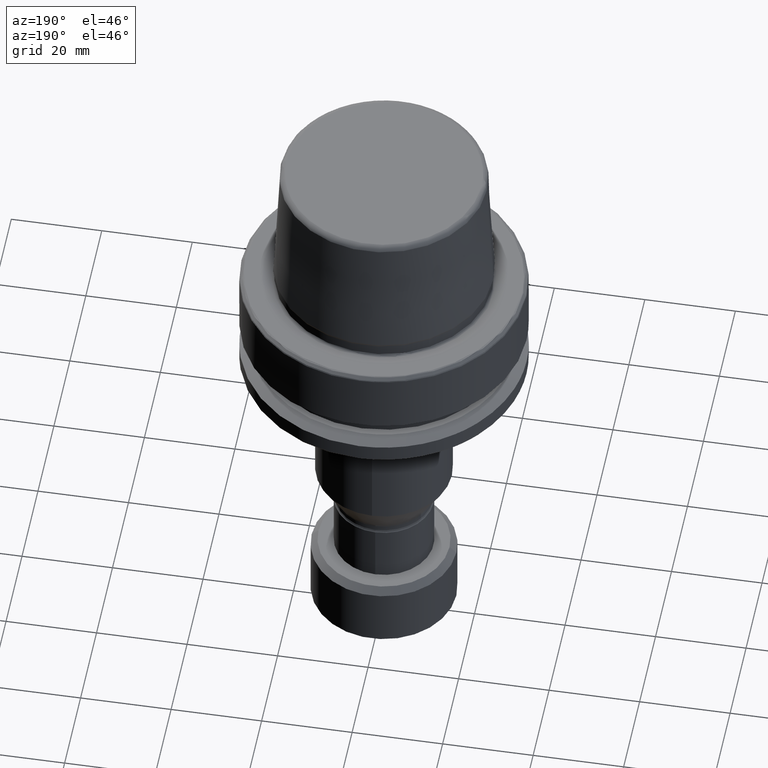
[diagram: clean part render]
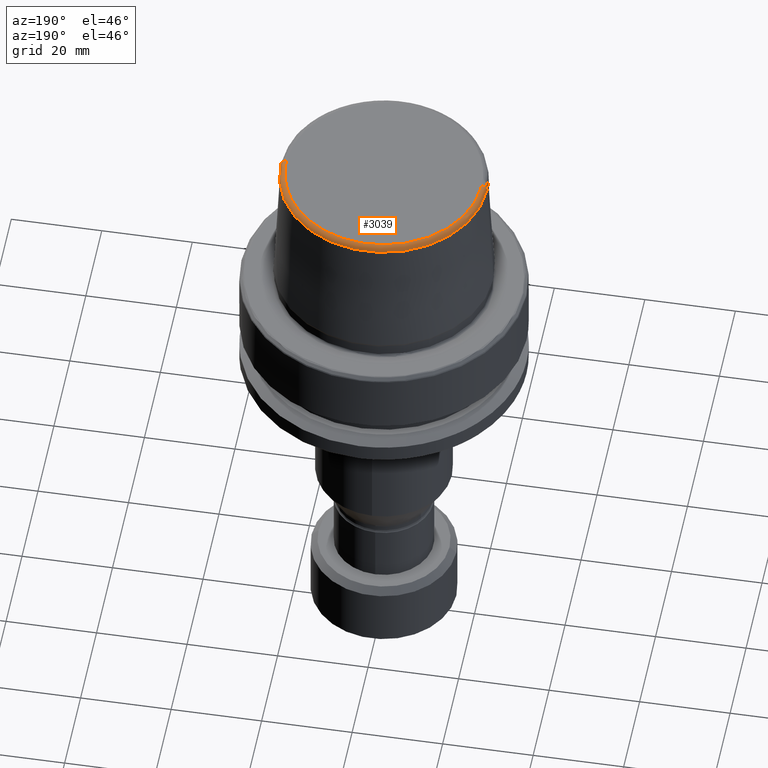
[diagram: same view with one face highlighted and labeled with its STEP entity id]
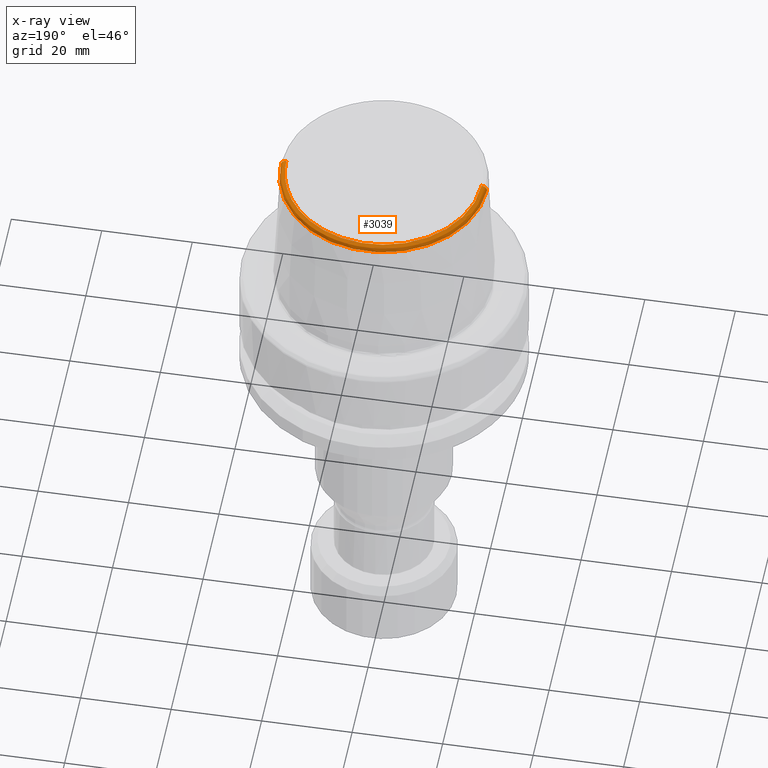
[diagram: x-ray of the same camera — body ghosted, the highlighted face saturated]
A machine part, auxiliary view. The second image highlights one B-rep face of the part: STEP entity #3039.
The next image is the same camera in x-ray: the body ghosted, the highlighted face saturated — about 0% of this face is hidden behind the body in this view.
In plain terms, the highlighted face is a freeform B-spline surface patch.
Its self-contained STEP definition (entity closure, byte-faithful):
#1 = CARTESIAN_POINT ( 'NONE',  ( -22.78040724247659600, 0.0000000000000000000, 30.74352350738630000 ) ) ;
#235 = CARTESIAN_POINT ( 'NONE',  ( 21.58108272599999800, 43.16216545299999300, 31.89999999999999900 ) ) ;
#254 = CARTESIAN_POINT ( 'NONE',  ( -21.58108272599999800, 0.0000000000000000000, 31.89999999999999500 ) ) ;
#267 = CARTESIAN_POINT ( 'NONE',  ( 22.77985549282552900, 0.0000000000000000000, 30.75453672446209600 ) ) ;
#370 = CARTESIAN_POINT ( 'NONE',  ( 0.0000000000000000000, 0.0000000000000000000, 30.76004333299997700 ) ) ;
#585 = CARTESIAN_POINT ( 'NONE',  ( 22.25643781299999800, 44.51287562500000700, 31.89999999999999900 ) ) ;
#600 = CARTESIAN_POINT ( 'NONE',  ( -22.77985549282552600, 45.55971098665922600, 30.75453672446209900 ) ) ;
#712 = DIRECTION ( 'NONE',  ( -1.000000000000000000, 8.881784197001252300E-016, 9.138308107476618100E-016 ) ) ;
#723 = CARTESIAN_POINT ( 'NONE',  ( -21.58108272254605700, 0.0000000000000000000, 31.89999999999999100 ) ) ;
#860 = VERTEX_POINT ( 'NONE', #4052 ) ;
#899 =( BOUNDED_CURVE ( )  B_SPLINE_CURVE ( 3, ( #1779, #2080, #1129, #1699 ),
 .UNSPECIFIED., .F., .T. ) 
 B_SPLINE_CURVE_WITH_KNOTS ( ( 4, 4 ),
 ( 0.0000000000000000000, 1.000000000000000000 ),
 .UNSPECIFIED. ) 
 CURVE ( )  GEOMETRIC_REPRESENTATION_ITEM ( )  RATIONAL_B_SPLINE_CURVE ( ( 0.9580048709100971200, 0.7821032309429468700, 0.7821032308313419200, 0.9580048705752841600 ) ) 
 REPRESENTATION_ITEM ( '' )  );
#903 = CARTESIAN_POINT ( 'NONE',  ( -22.25643781299999800, 0.0000000000000000000, 31.89999999999999900 ) ) ;
#919 = CARTESIAN_POINT ( 'NONE',  ( 22.78013136765105900, 0.0000000000000000000, 30.74903011592420300 ) ) ;
#1006 = CARTESIAN_POINT ( 'NONE',  ( -22.77957961860916200, -8.181844432284903700E-010, 30.76004333281712300 ) ) ;
#1129 = CARTESIAN_POINT ( 'NONE',  ( 22.74578747699999000, 0.0000000000000000000, 31.43455247600000000 ) ) ;
#1166 = VERTEX_POINT ( 'NONE', #1294 ) ;
#1232 = CARTESIAN_POINT ( 'NONE',  ( 21.58108272599999800, 0.0000000000000000000, 31.89999999999999500 ) ) ;
#1245 = CARTESIAN_POINT ( 'NONE',  ( 22.74578747699999300, 45.49157495399999400, 31.43455247599999300 ) ) ;
#1259 = CARTESIAN_POINT ( 'NONE',  ( -22.78013136765106200, 45.56026273631845700, 30.74903011592420300 ) ) ;
#1292 = CARTESIAN_POINT ( 'NONE',  ( -21.58108272605779000, 43.16216545311558400, 31.89999999999999900 ) ) ;
#1294 = CARTESIAN_POINT ( 'NONE',  ( -22.77957961860916200, -8.181844432284903700E-010, 30.76004333281712300 ) ) ;
#1305 = EDGE_CURVE ( 'NONE', #2124, #860, #899, .T. ) ;
#1389 = CIRCLE ( 'NONE', #3526, 22.77957961900000300 ) ;
#1527 = ORIENTED_EDGE ( 'NONE', *, *, #1305, .T. ) ;
#1557 = CARTESIAN_POINT ( 'NONE',  ( -22.74578747699999000, 0.0000000000000000000, 31.43455247600000400 ) ) ;
#1627 = CARTESIAN_POINT ( 'NONE',  ( 22.78040724247659600, 0.0000000000000000000, 30.74352350738630000 ) ) ;
#1650 = CARTESIAN_POINT ( 'NONE',  ( -21.58108272254605700, 0.0000000000000000000, 31.89999999999999100 ) ) ;
#1664 =( BOUNDED_CURVE ( )  B_SPLINE_CURVE ( 3, ( #1006, #2937, #3586, #1650 ),
 .UNSPECIFIED., .F., .F. ) 
 B_SPLINE_CURVE_WITH_KNOTS ( ( 4, 4 ),
 ( 0.0000000000000000000, 1.000000000000000000 ),
 .UNSPECIFIED. ) 
 CURVE ( )  GEOMETRIC_REPRESENTATION_ITEM ( )  RATIONAL_B_SPLINE_CURVE ( ( 0.9580048705752841600, 0.7821032308313419200, 0.7821032309429468700, 0.9580048709100971200 ) ) 
 REPRESENTATION_ITEM ( '' )  );
#1699 = CARTESIAN_POINT ( 'NONE',  ( 22.77957961860916200, -5.606603855993833900E-009, 30.76004333281712300 ) ) ;
#1779 = CARTESIAN_POINT ( 'NONE',  ( 21.58108272254605700, 0.0000000000000000000, 31.89999999999999100 ) ) ;
#1877 = ORIENTED_EDGE ( 'NONE', *, *, #3888, .T. ) ;
#1887 = CARTESIAN_POINT ( 'NONE',  ( 22.77957961799999600, 45.55915923699999600, 30.76004333299998800 ) ) ;
#1959 = CARTESIAN_POINT ( 'NONE',  ( -22.78040724247659600, 45.56081448597768700, 30.74352350738630000 ) ) ;
#2008 = EDGE_LOOP ( 'NONE', ( #1877, #3846, #2461, #1527 ) ) ;
#2015 =( BOUNDED_CURVE ( )  B_SPLINE_CURVE ( 3, ( #3227, #1292, #4193, #2257 ),
 .UNSPECIFIED., .F., .T. ) 
 B_SPLINE_CURVE_WITH_KNOTS ( ( 4, 4 ),
 ( 0.0000000000000000000, 1.000000000000000000 ),
 .UNSPECIFIED. ) 
 CURVE ( )  GEOMETRIC_REPRESENTATION_ITEM ( )  RATIONAL_B_SPLINE_CURVE ( ( 0.9580048708916588700, 0.3193349569638859700, 0.3193349569638859700, 0.9580048708916588700 ) ) 
 REPRESENTATION_ITEM ( '' )  );
#2080 = CARTESIAN_POINT ( 'NONE',  ( 22.25643781299999800, 0.0000000000000000000, 31.89999999999999900 ) ) ;
#2124 = VERTEX_POINT ( 'NONE', #4158 ) ;
#2198 = CARTESIAN_POINT ( 'NONE',  ( -21.58108272599999800, 43.16216545299999300, 31.89999999999999900 ) ) ;
#2210 = CARTESIAN_POINT ( 'NONE',  ( -22.77957961800000300, 0.0000000000000000000, 30.76004333299999200 ) ) ;
#2257 = CARTESIAN_POINT ( 'NONE',  ( 21.58108272254605700, 0.0000000000000000000, 31.89999999999999100 ) ) ;
#2281 = VERTEX_POINT ( 'NONE', #723 ) ;
#2449 =( BOUNDED_SURFACE ( )  B_SPLINE_SURFACE ( 3, 3, ( 
 ( #1232, #235, #2198, #254 ),
 ( #2501, #585, #2846, #903 ),
 ( #3176, #1245, #3496, #1557 ),
 ( #3813, #1887, #4149, #2210 ),
 ( #267, #2521, #600, #2858 ),
 ( #919, #3193, #1259, #3556 ),
 ( #1627, #3879, #1959, #1 ) ),
 .UNSPECIFIED., .F., .F., .T. ) 
 B_SPLINE_SURFACE_WITH_KNOTS ( ( 4, 3, 4 ),
 ( 4, 4 ),
 ( 0.06452911888679191400, 0.9354708805606210000, 0.9441802981773592700 ),
 ( 0.0000000000000000000, 1.000000000000000000 ),
 .UNSPECIFIED. ) 
 GEOMETRIC_REPRESENTATION_ITEM ( )  RATIONAL_B_SPLINE_SURFACE ( (
 ( 0.9580048709100971200, 0.3193349569700320600, 0.3193349569700320600, 0.9580048709100971200),
 ( 0.7821032309429468700, 0.2607010769809819900, 0.2607010769809819900, 0.7821032309429468700),
 ( 0.7821032308313419200, 0.2607010769437809700, 0.2607010769437809700, 0.7821032308313419200),
 ( 0.9580048705752841600, 0.3193349568584280500, 0.3193349568584280500, 0.9580048705752841600),
 ( 0.9580048705752841600, 0.3193349568584280500, 0.3193349568584280500, 0.9580048705752841600),
 ( 0.9580048705752841600, 0.3193349568584280500, 0.3193349568584280500, 0.9580048705752841600),
 ( 0.9580048705752841600, 0.3193349568584280500, 0.3193349568584280500, 0.9580048705752841600) ) ) 
 REPRESENTATION_ITEM ( '' )  SURFACE ( )  );
#2461 = ORIENTED_EDGE ( 'NONE', *, *, #2600, .T. ) ;
#2501 = CARTESIAN_POINT ( 'NONE',  ( 22.25643781299999800, 0.0000000000000000000, 31.89999999999999900 ) ) ;
#2521 = CARTESIAN_POINT ( 'NONE',  ( 22.77985549282552600, 45.55971098665922600, 30.75453672446209900 ) ) ;
#2600 = EDGE_CURVE ( 'NONE', #2281, #2124, #2015, .T. ) ;
#2631 = DIRECTION ( 'NONE',  ( -0.0000000000000000000, -0.0000000000000000000, 1.000000000000000000 ) ) ;
#2846 = CARTESIAN_POINT ( 'NONE',  ( -22.25643781299999800, 44.51287562500000700, 31.89999999999999900 ) ) ;
#2858 = CARTESIAN_POINT ( 'NONE',  ( -22.77985549282552900, 0.0000000000000000000, 30.75453672446209600 ) ) ;
#2937 = CARTESIAN_POINT ( 'NONE',  ( -22.74578747699999000, 0.0000000000000000000, 31.43455247600000000 ) ) ;
#3039 = ADVANCED_FACE ( 'NONE', ( #3960 ), #2449, .T. ) ;
#3176 = CARTESIAN_POINT ( 'NONE',  ( 22.74578747699999000, 0.0000000000000000000, 31.43455247600000400 ) ) ;
#3193 = CARTESIAN_POINT ( 'NONE',  ( 22.78013136765106200, 45.56026273631845700, 30.74903011592420300 ) ) ;
#3227 = CARTESIAN_POINT ( 'NONE',  ( -21.58108272254605700, 0.0000000000000000000, 31.89999999999999100 ) ) ;
#3496 = CARTESIAN_POINT ( 'NONE',  ( -22.74578747699999300, 45.49157495399999400, 31.43455247599999300 ) ) ;
#3526 = AXIS2_PLACEMENT_3D ( 'NONE', #370, #2631, #712 ) ;
#3556 = CARTESIAN_POINT ( 'NONE',  ( -22.78013136765105900, 0.0000000000000000000, 30.74903011592420300 ) ) ;
#3586 = CARTESIAN_POINT ( 'NONE',  ( -22.25643781299999800, 0.0000000000000000000, 31.89999999999999900 ) ) ;
#3813 = CARTESIAN_POINT ( 'NONE',  ( 22.77957961800000300, 0.0000000000000000000, 30.76004333299999200 ) ) ;
#3834 = EDGE_CURVE ( 'NONE', #1166, #2281, #1664, .T. ) ;
#3846 = ORIENTED_EDGE ( 'NONE', *, *, #3834, .T. ) ;
#3879 = CARTESIAN_POINT ( 'NONE',  ( 22.78040724247659600, 45.56081448597768700, 30.74352350738630000 ) ) ;
#3888 = EDGE_CURVE ( 'NONE', #860, #1166, #1389, .T. ) ;
#3960 = FACE_OUTER_BOUND ( 'NONE', #2008, .T. ) ;
#4052 = CARTESIAN_POINT ( 'NONE',  ( 22.77957961860916200, -5.606603855993833900E-009, 30.76004333281712300 ) ) ;
#4149 = CARTESIAN_POINT ( 'NONE',  ( -22.77957961799999600, 45.55915923699999600, 30.76004333299998800 ) ) ;
#4158 = CARTESIAN_POINT ( 'NONE',  ( 21.58108272254605700, 0.0000000000000000000, 31.89999999999999100 ) ) ;
#4193 = CARTESIAN_POINT ( 'NONE',  ( 21.58108272605779000, 43.16216545311558400, 31.89999999999999900 ) ) ;